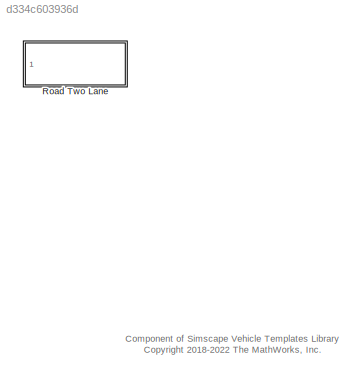
MODEL slx_d334c603936d
KIND library
CONFIG AbsTol = auto
CONFIG EnableMultiTasking = off
CONFIG FixedStep = auto
CONFIG MaxStep = auto
CONFIG MinStep = auto
CONFIG RelTol = 1e-3
CONFIG SampleTimeConstraint = Unconstrained
CONFIG SolverName = VariableStepAuto
CONFIG StartTime = 0.0
CONFIG StopTime = 10.0
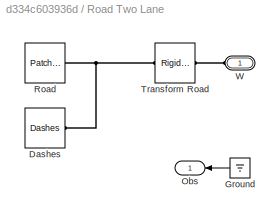
BLOCK [SubSystem] Road Two Lane
  Ports = [0, 1, 0, 0, 0, 1]
  RequestExecContextInheritance = off
BLOCK [Reference] Road Two Lane/Dashes  REF=sm_car_lib/Environment/Dashes  (lib defined in slx_05426f0848b6, slx_5dc2867fb1c9)
  Ports = [0, 0, 0, 0, 0, 1]
  SourceBlock = sm_car_lib/Environment/Dashes
BLOCK [Ground] Road Two Lane/Ground
  NameLocation = top
BLOCK [Outport] Road Two Lane/Obs
  VectorParamsAs1DForOutWhenUnconnected = off
BLOCK [Reference] Road Two Lane/Road  REF=sm_car_lib/Environment/Patch Rectangle  (lib defined in slx_05426f0848b6, slx_5dc2867fb1c9)
  Ports = [0, 0, 0, 0, 0, 0, 1]
  SourceBlock = sm_car_lib/Environment/Patch Rectangle
BLOCK [Reference] Road Two Lane/Transform Road  REF=sm_lib/Frames and
Transforms/Rigid
Transform
  Ports = [0, 0, 0, 0, 0, 1, 1]
  SourceBlock = sm_lib/Frames and\nTransforms/Rigid\nTransform
  SourceProductBaseCode = MS
  SourceType = Rigid\nTransform
BLOCK [PMIOPort] Road Two Lane/W
  NameLocation = top
  Side = Left
ANNOTATION (root): Component of Simscape Vehicle Templates Library <copyright redacted>
LINE Road Two Lane/Ground:1 -> Road Two Lane/Obs:1
PNET net1: Road Two Lane/Dashes:LConn1 -- Road Two Lane/Road:RConn1 -- Road Two Lane/Transform Road:RConn1
PLINE Road Two Lane/Transform Road:LConn1 -- Road Two Lane/W:RConn1
note: PNET lines group multi-terminal physical nets as a canonical sorted terminal list (undirected conserving connections); 2-terminal nets keep the pairwise PLINE form
